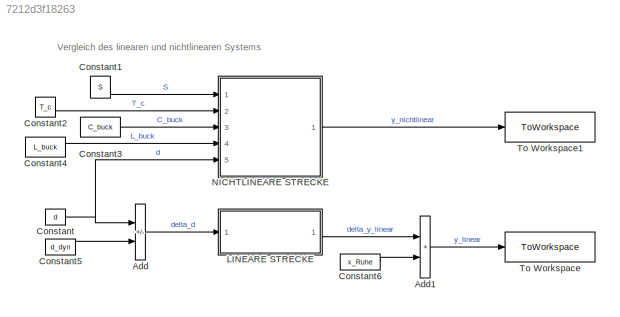
MODEL slx_7212d3f18263
KIND model
CONFIG AbsTol = auto
CONFIG EnableMultiTasking = off
CONFIG FixedStep = 1/1e4
CONFIG MaxStep = auto
CONFIG MinStep = auto
CONFIG RelTol = 1e-3
CONFIG SampleTimeConstraint = Unconstrained
CONFIG SolverName = FixedStepAuto
CONFIG StartTime = 0.0
CONFIG StopTime = 0.25
BLOCK [Sum] Add
  IconShape = rectangular
  Inputs = -+
  Ports = [2, 1]
BLOCK [Sum] Add1
  IconShape = rectangular
  Ports = [2, 1]
BLOCK [Constant] Constant
  Value = d
BLOCK [Constant] Constant1
  Value = S
BLOCK [Constant] Constant2
  Value = T_c
BLOCK [Constant] Constant3
  Value = C_buck
BLOCK [Constant] Constant4
  Value = L_buck
BLOCK [Constant] Constant5
  Value = d_dyn
BLOCK [Constant] Constant6
  Value = x_Ruhe
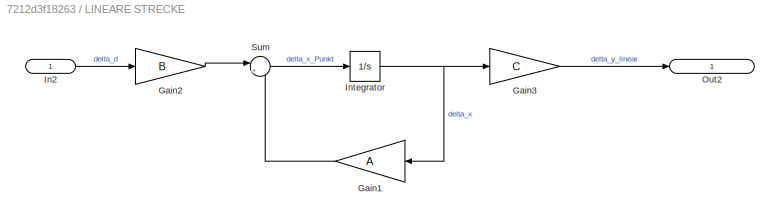
BLOCK [SubSystem] LINEARE STRECKE
  Ports = [1, 1]
  RequestExecContextInheritance = off
BLOCK [Gain] LINEARE STRECKE/Gain1
  Gain = A
  Multiplication = Matrix(K*u) (u vector)
  NameLocation = top
BLOCK [Gain] LINEARE STRECKE/Gain2
  Gain = B
  Multiplication = Matrix(K*u) (u vector)
BLOCK [Gain] LINEARE STRECKE/Gain3
  Gain = C
  Multiplication = Matrix(K*u) (u vector)
BLOCK [Inport] LINEARE STRECKE/In2
  IconDisplay = Signal name
BLOCK [Integrator] LINEARE STRECKE/Integrator
  Ports = [1, 1]
BLOCK [Outport] LINEARE STRECKE/Out2
  IconDisplay = Signal name
BLOCK [Sum] LINEARE STRECKE/Sum
  Inputs = |++
  Ports = [2, 1]
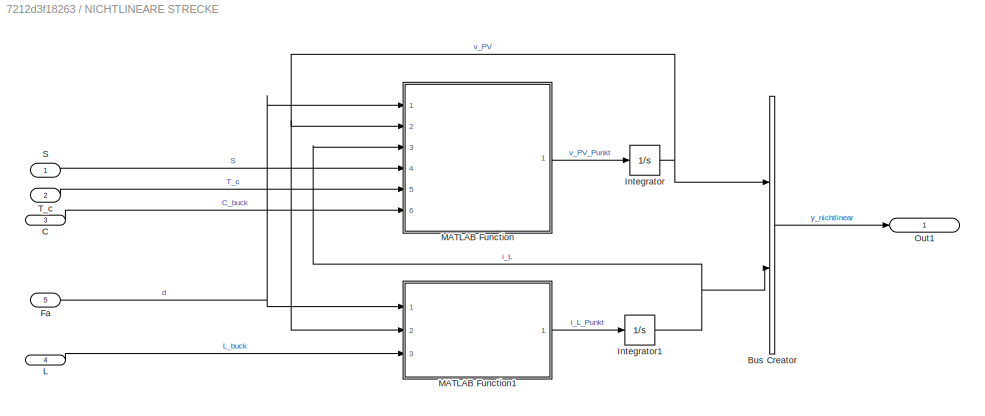
BLOCK [SubSystem] NICHTLINEARE STRECKE
  Ports = [5, 1]
  RequestExecContextInheritance = off
BLOCK [BusCreator] NICHTLINEARE STRECKE/Bus Creator
  DisplayOption = bar
  InheritFromInputs = on
  Inputs = 2
  Ports = [2, 1]
BLOCK [Inport] NICHTLINEARE STRECKE/C
  IconDisplay = Signal name
  Port = 3
BLOCK [Inport] NICHTLINEARE STRECKE/Fa
  IconDisplay = Signal name
  Port = 5
BLOCK [Integrator] NICHTLINEARE STRECKE/Integrator
  Ports = [1, 1]
BLOCK [Integrator] NICHTLINEARE STRECKE/Integrator1
  Ports = [1, 1]
BLOCK [Inport] NICHTLINEARE STRECKE/L
  IconDisplay = Signal name
  Port = 4
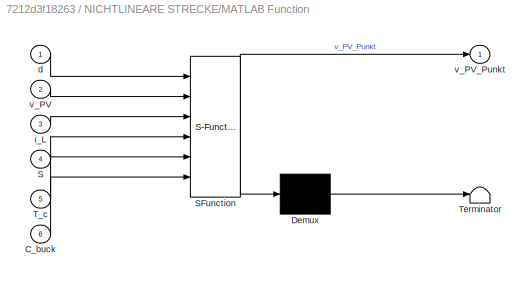
BLOCK [SubSystem] NICHTLINEARE STRECKE/MATLAB Function
  ErrorFcn = Stateflow.Translate.translate
  PermitHierarchicalResolution = ExplicitOnly
  Ports = [6, 1]
  RequestExecContextInheritance = off
  SFBlockType = MATLAB Function
  TreatAsAtomicUnit = on
BLOCK [Demux] NICHTLINEARE STRECKE/MATLAB Function/ Demux 
  Outputs = 1
  Ports = [1, 1]
BLOCK [S-Function] NICHTLINEARE STRECKE/MATLAB Function/ SFunction 
  EnableBusSupport = on
  FunctionName = sf_sfun
  PortCounts = [6 2]
  Ports = [6, 2]
  SFcnIsStateOwnerBlock = off
  SFunctionDeploymentMode = off
  Tag = Stateflow S-Function 2
BLOCK [Terminator] NICHTLINEARE STRECKE/MATLAB Function/ Terminator 
BLOCK [Inport] NICHTLINEARE STRECKE/MATLAB Function/C_buck
  Port = 6
BLOCK [Inport] NICHTLINEARE STRECKE/MATLAB Function/S
  Port = 4
BLOCK [Inport] NICHTLINEARE STRECKE/MATLAB Function/T_c
  Port = 5
BLOCK [Inport] NICHTLINEARE STRECKE/MATLAB Function/d
BLOCK [Inport] NICHTLINEARE STRECKE/MATLAB Function/i_L
  Port = 3
BLOCK [Inport] NICHTLINEARE STRECKE/MATLAB Function/v_PV
  Port = 2
BLOCK [Outport] NICHTLINEARE STRECKE/MATLAB Function/v_PV_Punkt
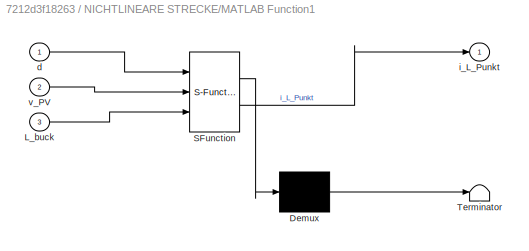
BLOCK [SubSystem] NICHTLINEARE STRECKE/MATLAB Function1
  ErrorFcn = Stateflow.Translate.translate
  PermitHierarchicalResolution = ExplicitOnly
  Ports = [3, 1]
  RequestExecContextInheritance = off
  SFBlockType = MATLAB Function
  TreatAsAtomicUnit = on
BLOCK [Demux] NICHTLINEARE STRECKE/MATLAB Function1/ Demux 
  Outputs = 1
  Ports = [1, 1]
BLOCK [S-Function] NICHTLINEARE STRECKE/MATLAB Function1/ SFunction 
  EnableBusSupport = on
  FunctionName = sf_sfun
  PortCounts = [3 2]
  Ports = [3, 2]
  SFcnIsStateOwnerBlock = off
  SFunctionDeploymentMode = off
  Tag = Stateflow S-Function 1
BLOCK [Terminator] NICHTLINEARE STRECKE/MATLAB Function1/ Terminator 
BLOCK [Inport] NICHTLINEARE STRECKE/MATLAB Function1/L_buck
  Port = 3
BLOCK [Inport] NICHTLINEARE STRECKE/MATLAB Function1/d
BLOCK [Outport] NICHTLINEARE STRECKE/MATLAB Function1/i_L_Punkt
BLOCK [Inport] NICHTLINEARE STRECKE/MATLAB Function1/v_PV
  Port = 2
BLOCK [Outport] NICHTLINEARE STRECKE/Out1
  IconDisplay = Signal name
BLOCK [Inport] NICHTLINEARE STRECKE/S
  IconDisplay = Signal name
BLOCK [Inport] NICHTLINEARE STRECKE/T_c
  IconDisplay = Signal name
  Port = 2
BLOCK [ToWorkspace] To Workspace
  FixptAsFi = on
  MaxDataPoints = inf
  Ports = [1]
  SampleTime = -1
  SaveFormat = Timeseries
  VariableName = y_linear
BLOCK [ToWorkspace] To Workspace1
  FixptAsFi = on
  MaxDataPoints = inf
  Ports = [1]
  SampleTime = -1
  SaveFormat = Timeseries
  VariableName = y_nichtlinear
ANNOTATION (root): Vergleich des linearen und nichtlinearen Systems
LINE Add1:1 -> To Workspace:1
LINE Add:1 -> LINEARE STRECKE:1
LINE Constant1:1 -> NICHTLINEARE STRECKE:1
LINE Constant2:1 -> NICHTLINEARE STRECKE:2
LINE Constant3:1 -> NICHTLINEARE STRECKE:3
LINE Constant4:1 -> NICHTLINEARE STRECKE:4
LINE Constant5:1 -> Add:2
LINE Constant6:1 -> Add1:2
NET Constant:1 -> Add:1, NICHTLINEARE STRECKE:5
LINE LINEARE STRECKE/Gain1:1 -> LINEARE STRECKE/Sum:2
LINE LINEARE STRECKE/Gain2:1 -> LINEARE STRECKE/Sum:1
LINE LINEARE STRECKE/Gain3:1 -> LINEARE STRECKE/Out2:1
LINE LINEARE STRECKE/In2:1 -> LINEARE STRECKE/Gain2:1
NET LINEARE STRECKE/Integrator:1 -> LINEARE STRECKE/Gain1:1, LINEARE STRECKE/Gain3:1
LINE LINEARE STRECKE/Sum:1 -> LINEARE STRECKE/Integrator:1
LINE LINEARE STRECKE:1 -> Add1:1
LINE NICHTLINEARE STRECKE/Bus Creator:1 -> NICHTLINEARE STRECKE/Out1:1
LINE NICHTLINEARE STRECKE/C:1 -> NICHTLINEARE STRECKE/MATLAB Function:6
NET NICHTLINEARE STRECKE/Fa:1 -> NICHTLINEARE STRECKE/MATLAB Function1:1, NICHTLINEARE STRECKE/MATLAB Function:1
NET NICHTLINEARE STRECKE/Integrator1:1 -> NICHTLINEARE STRECKE/Bus Creator:2, NICHTLINEARE STRECKE/MATLAB Function:3
NET NICHTLINEARE STRECKE/Integrator:1 -> NICHTLINEARE STRECKE/Bus Creator:1, NICHTLINEARE STRECKE/MATLAB Function1:2, NICHTLINEARE STRECKE/MATLAB Function:2
LINE NICHTLINEARE STRECKE/L:1 -> NICHTLINEARE STRECKE/MATLAB Function1:3
LINE NICHTLINEARE STRECKE/MATLAB Function1:1 -> NICHTLINEARE STRECKE/Integrator1:1
LINE NICHTLINEARE STRECKE/MATLAB Function:1 -> NICHTLINEARE STRECKE/Integrator:1
LINE NICHTLINEARE STRECKE/S:1 -> NICHTLINEARE STRECKE/MATLAB Function:4
LINE NICHTLINEARE STRECKE/T_c:1 -> NICHTLINEARE STRECKE/MATLAB Function:5
LINE NICHTLINEARE STRECKE:1 -> To Workspace1:1
note: NET lines group one-source signal fan-out (src -> all destinations, sorted); 1:1 wires keep LINE
CHART NICHTLINEARE STRECKE/MATLAB Function1 states=1 transitions=1
  STATE_LABEL 'eML_blk_kernel()'
  STATE_LABEL 'SCRIPT:\n% EINGÄNGE\n% d                 Duty Cycle\n% v_PV              PV-Spannung\n% L_buck            Induktivitätswert\n\n% AUSGÄNGE\n% i_L_Punkt        zeitliche Ableitung des Stroms i_L\n\nfunction i_L_Punkt = fcn(d, v_PV, L_buck)\n    % Konstanten\n    c = Konstanten();\n\n    % Berechnung\n    i_L_Punkt = 1/L_buck * v_PV * d - 1/L_buck * c.v_DC;'
CHART NICHTLINEARE STRECKE/MATLAB Function states=1 transitions=1
  STATE_LABEL 'eML_blk_kernel()'
  STATE_LABEL 'SCRIPT:\n% EINGÄNGE\n% d                 Duty Cycle\n% v_PV              PV-Spannung\n% i_L               Strom i_L\n% S                 Eingangsstrahlung\n% T_c               Zellentemperatur\n% C_buck            Kondensatorwert\n\n% AUSGÄNGE\n% v_PV_Punkt        zeitliche Ableitung der PV-Spannung\n\nfunction v_PV_Punkt = fcn(d, v_PV, i_L, S, T_c, C_buck)\n    % Konstanten\n    c = Konstanten();\n\n    % Berech...<+627ch>'
CHART  states=0 transitions=0
CHART  states=0 transitions=0
